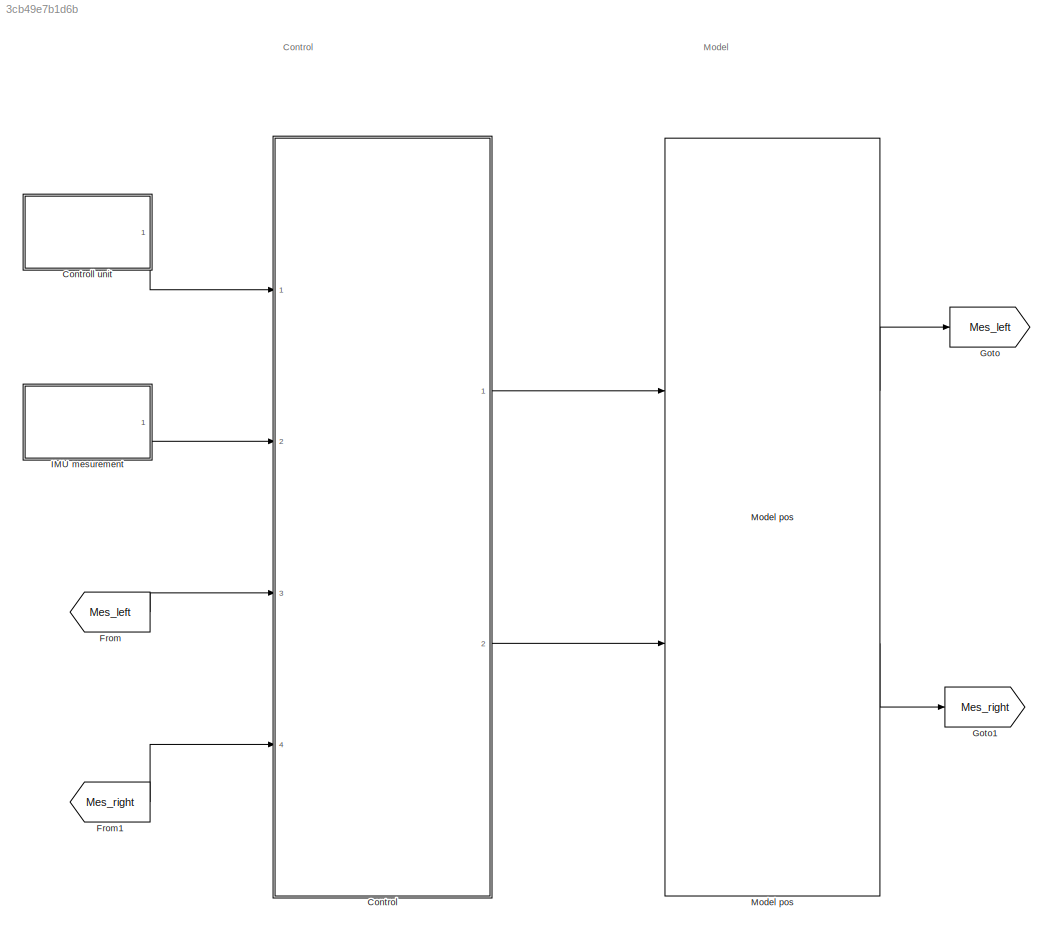
MODEL slx_3cb49e7b1d6b
KIND model
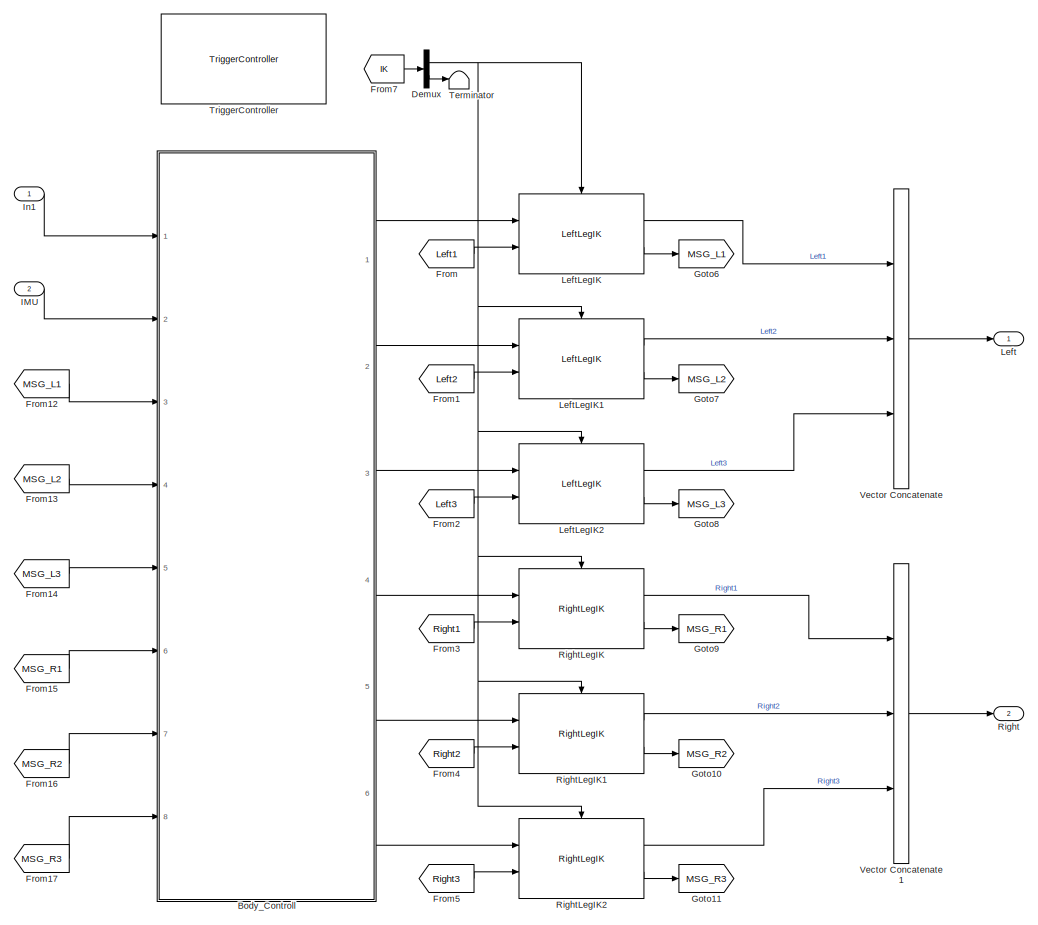
[diagram: Control - part 1/2, most of the canvas]
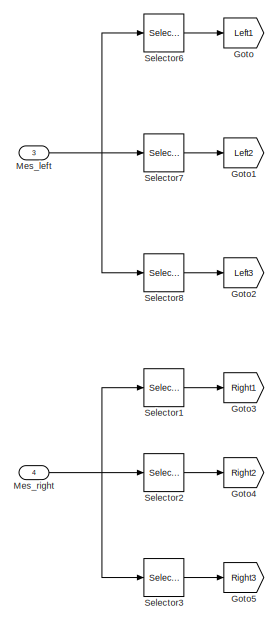
[diagram: Control - part 2/2, middle left region]
BLOCK [SubSystem] Control
  Ports = [4, 2]
  RequestExecContextInheritance = off
  TreatAsAtomicUnit = on
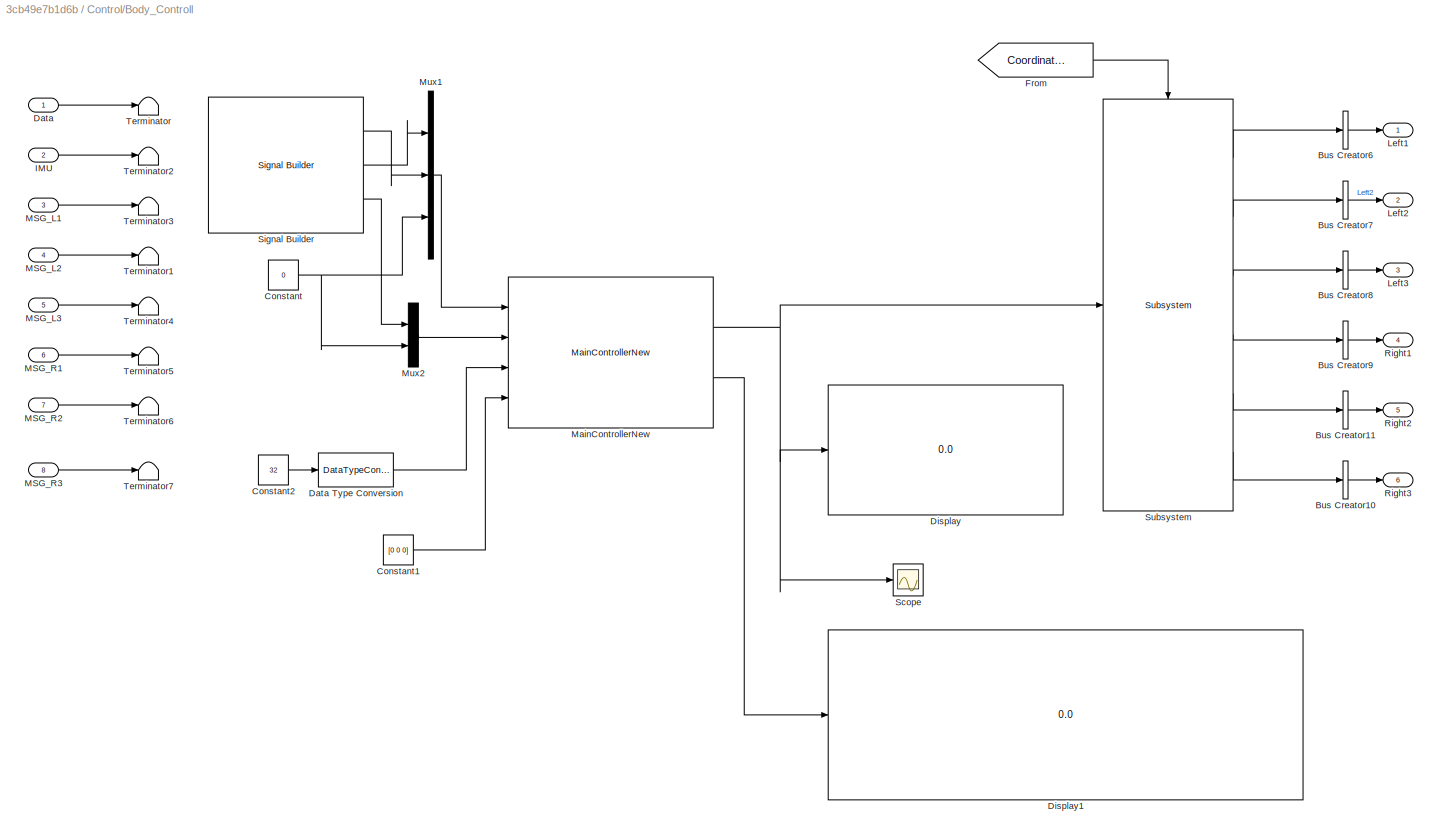
BLOCK [SubSystem] Control/Body_Controll
  Ports = [8, 6]
  RequestExecContextInheritance = off
BLOCK [BusCreator] Control/Body_Controll/Bus Creator10
  DisplayOption = bar
  InheritFromInputs = off
  Inputs = 1
  OutDataTypeStr = Bus: Leg_data
  Ports = [1, 1]
BLOCK [BusCreator] Control/Body_Controll/Bus Creator11
  DisplayOption = bar
  InheritFromInputs = off
  Inputs = 1
  OutDataTypeStr = Bus: Leg_data
  Ports = [1, 1]
BLOCK [BusCreator] Control/Body_Controll/Bus Creator6
  DisplayOption = bar
  InheritFromInputs = off
  Inputs = 1
  OutDataTypeStr = Bus: Leg_data
  Ports = [1, 1]
BLOCK [BusCreator] Control/Body_Controll/Bus Creator7
  DisplayOption = bar
  InheritFromInputs = off
  Inputs = 1
  OutDataTypeStr = Bus: Leg_data
  Ports = [1, 1]
BLOCK [BusCreator] Control/Body_Controll/Bus Creator8
  DisplayOption = bar
  InheritFromInputs = off
  Inputs = 1
  OutDataTypeStr = Bus: Leg_data
  Ports = [1, 1]
BLOCK [BusCreator] Control/Body_Controll/Bus Creator9
  DisplayOption = bar
  InheritFromInputs = off
  Inputs = 1
  OutDataTypeStr = Bus: Leg_data
  Ports = [1, 1]
BLOCK [Constant] Control/Body_Controll/Constant
  Value = 0
BLOCK [Constant] Control/Body_Controll/Constant1
  Value = [0 0 0]
BLOCK [Constant] Control/Body_Controll/Constant2
  Value = 32
BLOCK [Inport] Control/Body_Controll/Data
  IconDisplay = Port number
  OutDataTypeStr = Bus: Command
BLOCK [DataTypeConversion] Control/Body_Controll/Data Type Conversion
  OutDataTypeStr = uint8
  RndMeth = Floor
  SaturateOnIntegerOverflow = off
BLOCK [Display] Control/Body_Controll/Display
  Decimation = 1
  Ports = [1]
BLOCK [Display] Control/Body_Controll/Display1
  Decimation = 1
  Ports = [1]
BLOCK [From] Control/Body_Controll/From
  GotoTag = CoordinateTransform
  TagVisibility = global
BLOCK [Inport] Control/Body_Controll/IMU
  IconDisplay = Port number
  OutDataTypeStr = int8
  Port = 2
BLOCK [Outport] Control/Body_Controll/Left1
  IconDisplay = Port number
  OutDataTypeStr = Bus: Leg_data
BLOCK [Outport] Control/Body_Controll/Left2
  IconDisplay = Port number
  OutDataTypeStr = Bus: Leg_data
  Port = 2
BLOCK [Outport] Control/Body_Controll/Left3
  IconDisplay = Port number
  OutDataTypeStr = Bus: Leg_data
  Port = 3
BLOCK [Inport] Control/Body_Controll/MSG_L1
  IconDisplay = Port number
  Port = 3
BLOCK [Inport] Control/Body_Controll/MSG_L2
  IconDisplay = Port number
  Port = 4
BLOCK [Inport] Control/Body_Controll/MSG_L3
  IconDisplay = Port number
  Port = 5
BLOCK [Inport] Control/Body_Controll/MSG_R1
  IconDisplay = Port number
  Port = 6
BLOCK [Inport] Control/Body_Controll/MSG_R2
  IconDisplay = Port number
  Port = 7
BLOCK [Inport] Control/Body_Controll/MSG_R3
  IconDisplay = Port number
  Port = 8
BLOCK [Reference] Control/Body_Controll/MainControllerNew  REF=MainController/MainControllerNew
  Ports = [4, 2]
  SourceBlock = MainController/MainControllerNew
  SourceType = SubSystem
BLOCK [Mux] Control/Body_Controll/Mux1
  DisplayOption = bar
  Inputs = 3
  Ports = [3, 1]
BLOCK [Mux] Control/Body_Controll/Mux2
  DisplayOption = bar
  Inputs = 2
  Ports = [2, 1]
BLOCK [Outport] Control/Body_Controll/Right1
  IconDisplay = Port number
  OutDataTypeStr = Bus: Leg_data
  Port = 4
BLOCK [Outport] Control/Body_Controll/Right2
  IconDisplay = Port number
  OutDataTypeStr = Bus: Leg_data
  Port = 5
BLOCK [Outport] Control/Body_Controll/Right3
  IconDisplay = Port number
  OutDataTypeStr = Bus: Leg_data
  Port = 6
BLOCK [Scope] Control/Body_Controll/Scope
  Floating = off
  LimitDataPoints = off
  NumInputPorts = 1
  Ports = [1]
  SaveName = ScopeData5
  ShowLegends = off
  YMax = 250
  YMin = -250
BLOCK [Reference] Control/Body_Controll/Signal Builder  REF=TestSequence/TestSequence/Signal Builder
  Ports = [0, 3]
  SourceBlock = TestSequence/TestSequence/Signal Builder
  SourceType = Sigbuilder block
  Tag = STV Subsys
BLOCK [Reference] Control/Body_Controll/Subsystem  REF=Coord_BodyToLeg/Subsystem
  Ports = [1, 6, 0, 1]
  SourceBlock = Coord_BodyToLeg/Subsystem
  SourceType = SubSystem
BLOCK [Terminator] Control/Body_Controll/Terminator
BLOCK [Terminator] Control/Body_Controll/Terminator1
BLOCK [Terminator] Control/Body_Controll/Terminator2
BLOCK [Terminator] Control/Body_Controll/Terminator3
BLOCK [Terminator] Control/Body_Controll/Terminator4
BLOCK [Terminator] Control/Body_Controll/Terminator5
BLOCK [Terminator] Control/Body_Controll/Terminator6
BLOCK [Terminator] Control/Body_Controll/Terminator7
BLOCK [Demux] Control/Demux
  DisplayOption = bar
  Outputs = 2
  Ports = [1, 2]
BLOCK [From] Control/From
  GotoTag = Left1
BLOCK [From] Control/From1
  GotoTag = Left2
BLOCK [From] Control/From12
  GotoTag = MSG_L1
BLOCK [From] Control/From13
  GotoTag = MSG_L2
BLOCK [From] Control/From14
  GotoTag = MSG_L3
BLOCK [From] Control/From15
  GotoTag = MSG_R1
BLOCK [From] Control/From16
  GotoTag = MSG_R2
BLOCK [From] Control/From17
  GotoTag = MSG_R3
BLOCK [From] Control/From2
  GotoTag = Left3
BLOCK [From] Control/From3
  GotoTag = Right1
BLOCK [From] Control/From4
  GotoTag = Right2
BLOCK [From] Control/From5
  GotoTag = Right3
BLOCK [From] Control/From7
  GotoTag = IK
  TagVisibility = global
BLOCK [Goto] Control/Goto
  GotoTag = Left1
BLOCK [Goto] Control/Goto1
  GotoTag = Left2
BLOCK [Goto] Control/Goto10
  GotoTag = MSG_R2
BLOCK [Goto] Control/Goto11
  GotoTag = MSG_R3
BLOCK [Goto] Control/Goto2
  GotoTag = Left3
BLOCK [Goto] Control/Goto3
  GotoTag = Right1
BLOCK [Goto] Control/Goto4
  GotoTag = Right2
BLOCK [Goto] Control/Goto5
  GotoTag = Right3
BLOCK [Goto] Control/Goto6
  GotoTag = MSG_L1
BLOCK [Goto] Control/Goto7
  GotoTag = MSG_L2
BLOCK [Goto] Control/Goto8
  GotoTag = MSG_L3
BLOCK [Goto] Control/Goto9
  GotoTag = MSG_R1
BLOCK [Inport] Control/IMU
  IconDisplay = Port number
  Port = 2
BLOCK [Inport] Control/In1
  IconDisplay = Port number
BLOCK [Outport] Control/Left
  IconDisplay = Port number
  OutDataTypeStr = Bus: Leg_ref
BLOCK [Reference] Control/LeftLegIK  REF=LegIK/LeftLegIK
  ID1 = 1
  ID2 = 3
  ID3 = 5
  Ports = [2, 2, 0, 1]
  SourceBlock = LegIK/LeftLegIK
BLOCK [Reference] Control/LeftLegIK1  REF=LegIK/LeftLegIK
  ID1 = 13
  ID2 = 15
  ID3 = 17
  Ports = [2, 2, 0, 1]
  SourceBlock = LegIK/LeftLegIK
BLOCK [Reference] Control/LeftLegIK2  REF=LegIK/LeftLegIK
  ID1 = 7
  ID2 = 9
  ID3 = 11
  Ports = [2, 2, 0, 1]
  SourceBlock = LegIK/LeftLegIK
BLOCK [Inport] Control/Mes_left
  IconDisplay = Port number
  OutDataTypeStr = Bus: Leg_mes
  Port = 3
BLOCK [Inport] Control/Mes_right
  IconDisplay = Port number
  OutDataTypeStr = Bus: Leg_mes
  Port = 4
BLOCK [Outport] Control/Right
  IconDisplay = Port number
  OutDataTypeStr = Bus: Leg_ref
  Port = 2
BLOCK [Reference] Control/RightLegIK  REF=LegIK/RightLegIK
  ID1 = 2
  ID2 = 4
  ID3 = 6
  Ports = [2, 2, 0, 1]
  SourceBlock = LegIK/RightLegIK
BLOCK [Reference] Control/RightLegIK1  REF=LegIK/RightLegIK
  ID1 = 14
  ID2 = 16
  ID3 = 18
  Ports = [2, 2, 0, 1]
  SourceBlock = LegIK/RightLegIK
BLOCK [Reference] Control/RightLegIK2  REF=LegIK/RightLegIK
  ID1 = 8
  ID2 = 10
  ID3 = 12
  Ports = [2, 2, 0, 1]
  SourceBlock = LegIK/RightLegIK
BLOCK [Selector] Control/Selector1
  IndexMode = Zero-based
  Indices = 0
  InputPortWidth = 3
  Ports = [1, 1]
BLOCK [Selector] Control/Selector2
  IndexMode = Zero-based
  InputPortWidth = 3
  Ports = [1, 1]
BLOCK [Selector] Control/Selector3
  IndexMode = Zero-based
  Indices = 2
  InputPortWidth = 3
  Ports = [1, 1]
BLOCK [Selector] Control/Selector6
  IndexMode = Zero-based
  Indices = 0
  InputPortWidth = 3
  Ports = [1, 1]
BLOCK [Selector] Control/Selector7
  IndexMode = Zero-based
  InputPortWidth = 3
  Ports = [1, 1]
BLOCK [Selector] Control/Selector8
  IndexMode = Zero-based
  Indices = 2
  InputPortWidth = 3
  Ports = [1, 1]
BLOCK [Terminator] Control/Terminator
BLOCK [Reference] Control/TriggerController  REF=TriggerSystem/TriggerController
  Ports = []
  SourceBlock = TriggerSystem/TriggerController
  f = 40
BLOCK [Concatenate] Control/Vector Concatenate
  ConcatenateDimension = 2
  NumInputs = 3
  Ports = [3, 1]
BLOCK [Concatenate] Control/Vector Concatenate1
  ConcatenateDimension = 2
  NumInputs = 3
  Ports = [3, 1]
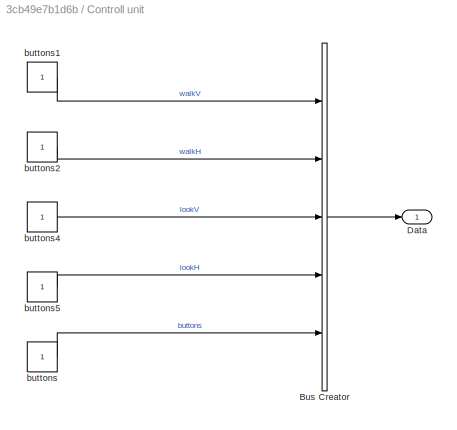
BLOCK [SubSystem] Controll unit
  Ports = [0, 1]
  RequestExecContextInheritance = off
BLOCK [BusCreator] Controll unit/Bus Creator
  DisplayOption = bar
  Inputs = 5
  OutDataTypeStr = Bus: Command
  Ports = [5, 1]
BLOCK [Outport] Controll unit/Data
  IconDisplay = Port number
  OutDataTypeStr = Bus: Command
  PortDimensions = 3
BLOCK [Constant] Controll unit/buttons
  OutDataTypeStr = uint8
BLOCK [Constant] Controll unit/buttons1
  OutDataTypeStr = int8
BLOCK [Constant] Controll unit/buttons2
  OutDataTypeStr = int8
BLOCK [Constant] Controll unit/buttons4
  OutDataTypeStr = int8
BLOCK [Constant] Controll unit/buttons5
  OutDataTypeStr = int8
BLOCK [From] From
  GotoTag = Mes_left
BLOCK [From] From1
  GotoTag = Mes_right
BLOCK [Goto] Goto
  GotoTag = Mes_left
BLOCK [Goto] Goto1
  GotoTag = Mes_right
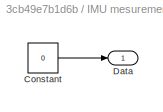
BLOCK [SubSystem] IMU mesurement
  Ports = [0, 1]
  RequestExecContextInheritance = off
BLOCK [Constant] IMU mesurement/Constant
  OutDataTypeStr = int8
  Value = 0
BLOCK [Outport] IMU mesurement/Data
  IconDisplay = Port number
BLOCK [Reference] Model pos  REF=Completemodels/Model
 pos
  Ports = [2, 2]
  SourceBlock = Completemodels/Model\n pos
  SourceType = SubSystem
ANNOTATION (root): Control
ANNOTATION (root): Model
LINE Control/Body_Controll/Bus Creator10:1 -> Control/Body_Controll/Right3:1
LINE Control/Body_Controll/Bus Creator11:1 -> Control/Body_Controll/Right2:1
LINE Control/Body_Controll/Bus Creator6:1 -> Control/Body_Controll/Left1:1
LINE Control/Body_Controll/Bus Creator7:1 -> Control/Body_Controll/Left2:1
LINE Control/Body_Controll/Bus Creator8:1 -> Control/Body_Controll/Left3:1
LINE Control/Body_Controll/Bus Creator9:1 -> Control/Body_Controll/Right1:1
LINE Control/Body_Controll/Constant1:1 -> Control/Body_Controll/MainControllerNew:4
LINE Control/Body_Controll/Constant2:1 -> Control/Body_Controll/Data Type Conversion:1
NET Control/Body_Controll/Constant:1 -> Control/Body_Controll/Mux1:3, Control/Body_Controll/Mux2:2
LINE Control/Body_Controll/Data Type Conversion:1 -> Control/Body_Controll/MainControllerNew:3
LINE Control/Body_Controll/Data:1 -> Control/Body_Controll/Terminator:1
LINE Control/Body_Controll/From:1 -> Control/Body_Controll/Subsystem:trigger
LINE Control/Body_Controll/IMU:1 -> Control/Body_Controll/Terminator2:1
LINE Control/Body_Controll/MSG_L1:1 -> Control/Body_Controll/Terminator3:1
LINE Control/Body_Controll/MSG_L2:1 -> Control/Body_Controll/Terminator1:1
LINE Control/Body_Controll/MSG_L3:1 -> Control/Body_Controll/Terminator4:1
LINE Control/Body_Controll/MSG_R1:1 -> Control/Body_Controll/Terminator5:1
LINE Control/Body_Controll/MSG_R2:1 -> Control/Body_Controll/Terminator6:1
LINE Control/Body_Controll/MSG_R3:1 -> Control/Body_Controll/Terminator7:1
NET Control/Body_Controll/MainControllerNew:1 -> Control/Body_Controll/Display:1, Control/Body_Controll/Scope:1, Control/Body_Controll/Subsystem:1
LINE Control/Body_Controll/MainControllerNew:2 -> Control/Body_Controll/Display1:1
LINE Control/Body_Controll/Mux1:1 -> Control/Body_Controll/MainControllerNew:1
LINE Control/Body_Controll/Mux2:1 -> Control/Body_Controll/MainControllerNew:2
LINE Control/Body_Controll/Signal Builder:1 -> Control/Body_Controll/Mux1:2
LINE Control/Body_Controll/Signal Builder:2 -> Control/Body_Controll/Mux1:1
LINE Control/Body_Controll/Signal Builder:3 -> Control/Body_Controll/Mux2:1
LINE Control/Body_Controll/Subsystem:1 -> Control/Body_Controll/Bus Creator6:1
LINE Control/Body_Controll/Subsystem:2 -> Control/Body_Controll/Bus Creator7:1
LINE Control/Body_Controll/Subsystem:3 -> Control/Body_Controll/Bus Creator8:1
LINE Control/Body_Controll/Subsystem:4 -> Control/Body_Controll/Bus Creator9:1
LINE Control/Body_Controll/Subsystem:5 -> Control/Body_Controll/Bus Creator11:1
LINE Control/Body_Controll/Subsystem:6 -> Control/Body_Controll/Bus Creator10:1
LINE Control/Body_Controll:1 -> Control/LeftLegIK:1
LINE Control/Body_Controll:2 -> Control/LeftLegIK1:1
LINE Control/Body_Controll:3 -> Control/LeftLegIK2:1
LINE Control/Body_Controll:4 -> Control/RightLegIK:1
LINE Control/Body_Controll:5 -> Control/RightLegIK1:1
LINE Control/Body_Controll:6 -> Control/RightLegIK2:1
NET Control/Demux:1 -> Control/LeftLegIK1:trigger, Control/LeftLegIK2:trigger, Control/LeftLegIK:trigger, Control/RightLegIK1:trigger, Control/RightLegIK2:trigger, Control/RightLegIK:trigger
LINE Control/Demux:2 -> Control/Terminator:1
LINE Control/From12:1 -> Control/Body_Controll:3
LINE Control/From13:1 -> Control/Body_Controll:4
LINE Control/From14:1 -> Control/Body_Controll:5
LINE Control/From15:1 -> Control/Body_Controll:6
LINE Control/From16:1 -> Control/Body_Controll:7
LINE Control/From17:1 -> Control/Body_Controll:8
LINE Control/From1:1 -> Control/LeftLegIK1:2
LINE Control/From2:1 -> Control/LeftLegIK2:2
LINE Control/From3:1 -> Control/RightLegIK:2
LINE Control/From4:1 -> Control/RightLegIK1:2
LINE Control/From5:1 -> Control/RightLegIK2:2
LINE Control/From7:1 -> Control/Demux:1
LINE Control/From:1 -> Control/LeftLegIK:2
LINE Control/IMU:1 -> Control/Body_Controll:2
LINE Control/In1:1 -> Control/Body_Controll:1
LINE Control/LeftLegIK1:1 -> Control/Vector Concatenate:2
LINE Control/LeftLegIK1:2 -> Control/Goto7:1
LINE Control/LeftLegIK2:1 -> Control/Vector Concatenate:3
LINE Control/LeftLegIK2:2 -> Control/Goto8:1
LINE Control/LeftLegIK:1 -> Control/Vector Concatenate:1
LINE Control/LeftLegIK:2 -> Control/Goto6:1
NET Control/Mes_left:1 -> Control/Selector6:1, Control/Selector7:1, Control/Selector8:1
NET Control/Mes_right:1 -> Control/Selector1:1, Control/Selector2:1, Control/Selector3:1
LINE Control/RightLegIK1:1 -> Control/Vector Concatenate1:2
LINE Control/RightLegIK1:2 -> Control/Goto10:1
LINE Control/RightLegIK2:1 -> Control/Vector Concatenate1:3
LINE Control/RightLegIK2:2 -> Control/Goto11:1
LINE Control/RightLegIK:1 -> Control/Vector Concatenate1:1
LINE Control/RightLegIK:2 -> Control/Goto9:1
LINE Control/Selector1:1 -> Control/Goto3:1
LINE Control/Selector2:1 -> Control/Goto4:1
LINE Control/Selector3:1 -> Control/Goto5:1
LINE Control/Selector6:1 -> Control/Goto:1
LINE Control/Selector7:1 -> Control/Goto1:1
LINE Control/Selector8:1 -> Control/Goto2:1
LINE Control/Vector Concatenate1:1 -> Control/Right:1
LINE Control/Vector Concatenate:1 -> Control/Left:1
LINE Control:1 -> Model pos:1
LINE Control:2 -> Model pos:2
LINE Controll unit/Bus Creator:1 -> Controll unit/Data:1
LINE Controll unit/buttons1:1 -> Controll unit/Bus Creator:1
LINE Controll unit/buttons2:1 -> Controll unit/Bus Creator:2
LINE Controll unit/buttons4:1 -> Controll unit/Bus Creator:3
LINE Controll unit/buttons5:1 -> Controll unit/Bus Creator:4
LINE Controll unit/buttons:1 -> Controll unit/Bus Creator:5
LINE Controll unit:1 -> Control:1
LINE From1:1 -> Control:4
LINE From:1 -> Control:3
LINE IMU mesurement/Constant:1 -> IMU mesurement/Data:1
LINE IMU mesurement:1 -> Control:2
LINE Model pos:1 -> Goto:1
LINE Model pos:2 -> Goto1:1
note: NET lines group one-source signal fan-out (src -> all destinations, sorted); 1:1 wires keep LINE
